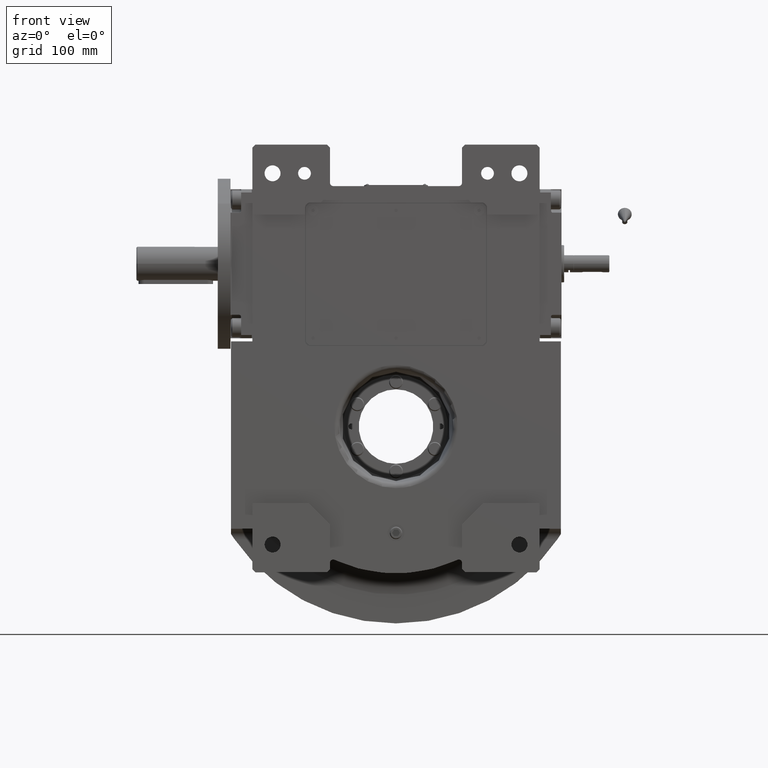
[diagram: clean part render]
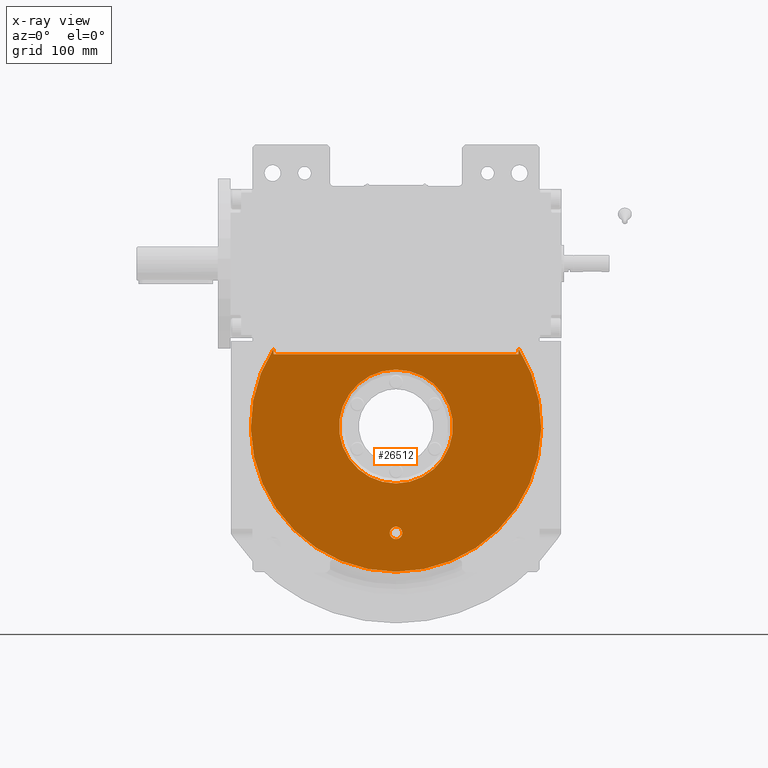
[diagram: x-ray — body ghosted, one internal face saturated and labeled with its STEP entity id]
A machine part, front view, then the same camera in x-ray: the body is ghosted and one INTERNAL B-rep face — a face not visible from any outside direction — is saturated and labeled: STEP entity #26512.
In plain terms, the highlighted planar face has unit normal (0, -1, 0).
Its self-contained STEP definition (entity closure, byte-faithful):
#949 = EDGE_CURVE ( 'NONE', #60816, #22083, #5827, .T. ) ;
#1309 = CARTESIAN_POINT ( 'NONE',  ( 115.0000000000000000, -63.00000000000000000, 67.99999999999997158 ) ) ;
#2017 = DIRECTION ( 'NONE',  ( -1.000000000000000000, 0.000000000000000000, 0.000000000000000000 ) ) ;
#2515 = LINE ( 'NONE', #46194, #19895 ) ;
#3178 = AXIS2_PLACEMENT_3D ( 'NONE', #44355, #60654, #33316 ) ;
#3625 = CARTESIAN_POINT ( 'NONE',  ( 0.000000000000000000, -63.00000000000000000, 0.000000000000000000 ) ) ;
#4820 = EDGE_CURVE ( 'NONE', #50197, #53213, #44377, .T. ) ;
#5465 = EDGE_CURVE ( 'NONE', #53213, #38051, #29429, .T. ) ;
#5827 = CIRCLE ( 'NONE', #45534, 53.50000000000000000 ) ;
#8179 = DIRECTION ( 'NONE',  ( 0.000000000000000000, 0.000000000000000000, 1.000000000000000000 ) ) ;
#9782 = ORIENTED_EDGE ( 'NONE', *, *, #66187, .T. ) ;
#10907 = ORIENTED_EDGE ( 'NONE', *, *, #40697, .F. ) ;
#12819 = ORIENTED_EDGE ( 'NONE', *, *, #5465, .T. ) ;
#13202 = ORIENTED_EDGE ( 'NONE', *, *, #40487, .T. ) ;
#13745 = AXIS2_PLACEMENT_3D ( 'NONE', #38569, #17206, #55577 ) ;
#13968 = ORIENTED_EDGE ( 'NONE', *, *, #24627, .F. ) ;
#15223 = CARTESIAN_POINT ( 'NONE',  ( 0.000000000000000000, -63.00000000000000000, -100.0000000000000000 ) ) ;
#15463 = DIRECTION ( 'NONE',  ( -1.209434443846979996E-15, -1.000000000000000000, 1.209434443846979996E-15 ) ) ;
#16050 = ORIENTED_EDGE ( 'NONE', *, *, #26431, .T. ) ;
#16615 = FACE_BOUND ( 'NONE', #48526, .T. ) ;
#17206 = DIRECTION ( 'NONE',  ( 0.000000000000000000, 1.000000000000000000, 0.000000000000000000 ) ) ;
#17865 = CIRCLE ( 'NONE', #30375, 5.875000000000000000 ) ;
#18872 = DIRECTION ( 'NONE',  ( 0.000000000000000000, 1.000000000000000000, 0.000000000000000000 ) ) ;
#19895 = VECTOR ( 'NONE', #8179, 1000.000000000000000 ) ;
#20278 = ORIENTED_EDGE ( 'NONE', *, *, #4820, .T. ) ;
#21343 = DIRECTION ( 'NONE',  ( 0.000000000000000000, 0.000000000000000000, 1.000000000000000000 ) ) ;
#22083 = VERTEX_POINT ( 'NONE', #33533 ) ;
#23246 = EDGE_LOOP ( 'NONE', ( #9782, #16050 ) ) ;
#24627 = EDGE_CURVE ( 'NONE', #22083, #60816, #47751, .T. ) ;
#26160 = AXIS2_PLACEMENT_3D ( 'NONE', #3625, #70010, #21343 ) ;
#26245 = DIRECTION ( 'NONE',  ( -1.000000000000000000, 0.000000000000000000, 0.000000000000000000 ) ) ;
#26431 = EDGE_CURVE ( 'NONE', #54713, #29519, #17865, .T. ) ;
#26512 = ADVANCED_FACE ( 'NONE', ( #46898, #30875, #16615 ), #38684, .F. ) ;
#27392 = DIRECTION ( 'NONE',  ( 0.000000000000000000, 0.000000000000000000, 1.000000000000000000 ) ) ;
#28626 = CARTESIAN_POINT ( 'NONE',  ( 0.000000000000000000, -62.99999999999998579, 67.99999999999997158 ) ) ;
#29429 = CIRCLE ( 'NONE', #40829, 136.5000000000000000 ) ;
#29519 = VERTEX_POINT ( 'NONE', #61819 ) ;
#30375 = AXIS2_PLACEMENT_3D ( 'NONE', #15223, #58559, #26245 ) ;
#30875 = FACE_BOUND ( 'NONE', #23246, .T. ) ;
#31565 = EDGE_CURVE ( 'NONE', #53392, #32781, #55984, .T. ) ;
#31810 = DIRECTION ( 'NONE',  ( 0.000000000000000000, 1.000000000000000000, 0.000000000000000000 ) ) ;
#32781 = VERTEX_POINT ( 'NONE', #66790 ) ;
#33316 = DIRECTION ( 'NONE',  ( 0.000000000000000000, 1.836909530733564901E-16, 1.000000000000000000 ) ) ;
#33533 = CARTESIAN_POINT ( 'NONE',  ( 0.000000000000000000, -63.00000000000000000, -53.50000000000000000 ) ) ;
#35098 = EDGE_LOOP ( 'NONE', ( #10907, #50935, #13202, #20278, #12819 ) ) ;
#37661 = CARTESIAN_POINT ( 'NONE',  ( -115.0000000000000000, -63.00000000000000000, 73.53400573884168523 ) ) ;
#38051 = VERTEX_POINT ( 'NONE', #37661 ) ;
#38569 = CARTESIAN_POINT ( 'NONE',  ( 0.000000000000000000, -63.00000000000000000, 0.000000000000000000 ) ) ;
#38611 = CARTESIAN_POINT ( 'NONE',  ( -5.875000000000000000, -63.00000000000000000, -100.0000000000000000 ) ) ;
#38684 = PLANE ( 'NONE',  #3178 ) ;
#40487 = EDGE_CURVE ( 'NONE', #53392, #50197, #49082, .T. ) ;
#40697 = EDGE_CURVE ( 'NONE', #32781, #38051, #2515, .T. ) ;
#40829 = AXIS2_PLACEMENT_3D ( 'NONE', #45565, #18872, #62909 ) ;
#41094 = ORIENTED_EDGE ( 'NONE', *, *, #949, .F. ) ;
#41232 = CIRCLE ( 'NONE', #58274, 5.875000000000000000 ) ;
#44355 = CARTESIAN_POINT ( 'NONE',  ( 0.000000000000000000, -63.00000000000000000, 2.534751534906250014E-14 ) ) ;
#44377 = CIRCLE ( 'NONE', #13745, 136.5000000000000000 ) ;
#44820 = VECTOR ( 'NONE', #27392, 1000.000000000000000 ) ;
#45534 = AXIS2_PLACEMENT_3D ( 'NONE', #54201, #31810, #65164 ) ;
#45565 = CARTESIAN_POINT ( 'NONE',  ( 0.000000000000000000, -63.00000000000000000, 0.000000000000000000 ) ) ;
#46194 = CARTESIAN_POINT ( 'NONE',  ( -115.0000000000000000, -63.00000000000000000, 0.000000000000000000 ) ) ;
#46836 = VECTOR ( 'NONE', #2017, 1000.000000000000000 ) ;
#46898 = FACE_OUTER_BOUND ( 'NONE', #35098, .T. ) ;
#47751 = CIRCLE ( 'NONE', #26160, 53.50000000000000000 ) ;
#48526 = EDGE_LOOP ( 'NONE', ( #13968, #41094 ) ) ;
#48535 = DIRECTION ( 'NONE',  ( 1.000000000000000000, -2.362176648138630895E-15, 0.000000000000000000 ) ) ;
#48724 = CARTESIAN_POINT ( 'NONE',  ( 115.0000000000000000, -63.00000000000000000, 0.000000000000000000 ) ) ;
#49082 = LINE ( 'NONE', #48724, #44820 ) ;
#49343 = CARTESIAN_POINT ( 'NONE',  ( 6.551860375438339893E-15, -63.00000000000000000, 53.50000000000000000 ) ) ;
#50197 = VERTEX_POINT ( 'NONE', #58810 ) ;
#50935 = ORIENTED_EDGE ( 'NONE', *, *, #31565, .F. ) ;
#53213 = VERTEX_POINT ( 'NONE', #63117 ) ;
#53392 = VERTEX_POINT ( 'NONE', #1309 ) ;
#53849 = CARTESIAN_POINT ( 'NONE',  ( 0.000000000000000000, -63.00000000000000000, -100.0000000000000000 ) ) ;
#54201 = CARTESIAN_POINT ( 'NONE',  ( 0.000000000000000000, -63.00000000000000000, 0.000000000000000000 ) ) ;
#54713 = VERTEX_POINT ( 'NONE', #38611 ) ;
#55577 = DIRECTION ( 'NONE',  ( 0.000000000000000000, 0.000000000000000000, 1.000000000000000000 ) ) ;
#55984 = LINE ( 'NONE', #28626, #46836 ) ;
#58274 = AXIS2_PLACEMENT_3D ( 'NONE', #53849, #15463, #48535 ) ;
#58559 = DIRECTION ( 'NONE',  ( 0.000000000000000000, -1.000000000000000000, 0.000000000000000000 ) ) ;
#58810 = CARTESIAN_POINT ( 'NONE',  ( 115.0000000000000000, -63.00000000000000000, 73.53400573884168523 ) ) ;
#60654 = DIRECTION ( 'NONE',  ( 0.000000000000000000, -1.000000000000000000, 1.836909530733564901E-16 ) ) ;
#60816 = VERTEX_POINT ( 'NONE', #49343 ) ;
#61819 = CARTESIAN_POINT ( 'NONE',  ( 5.875000000000000000, -63.00000000000000000, -100.0000000000000000 ) ) ;
#62909 = DIRECTION ( 'NONE',  ( 0.000000000000000000, 0.000000000000000000, 1.000000000000000000 ) ) ;
#63117 = CARTESIAN_POINT ( 'NONE',  ( 0.000000000000000000, -63.00000000000000000, -136.5000000000000000 ) ) ;
#65164 = DIRECTION ( 'NONE',  ( 0.000000000000000000, 0.000000000000000000, 1.000000000000000000 ) ) ;
#66187 = EDGE_CURVE ( 'NONE', #29519, #54713, #41232, .T. ) ;
#66790 = CARTESIAN_POINT ( 'NONE',  ( -115.0000000000000000, -63.00000000000000000, 67.99999999999997158 ) ) ;
#70010 = DIRECTION ( 'NONE',  ( 0.000000000000000000, 1.000000000000000000, 0.000000000000000000 ) ) ;